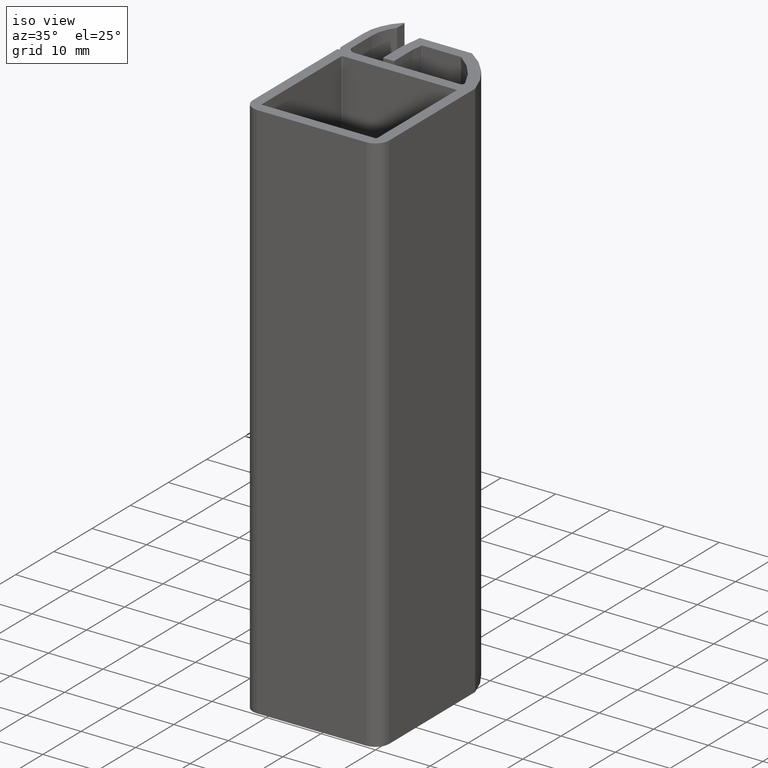
[diagram: clean part render]
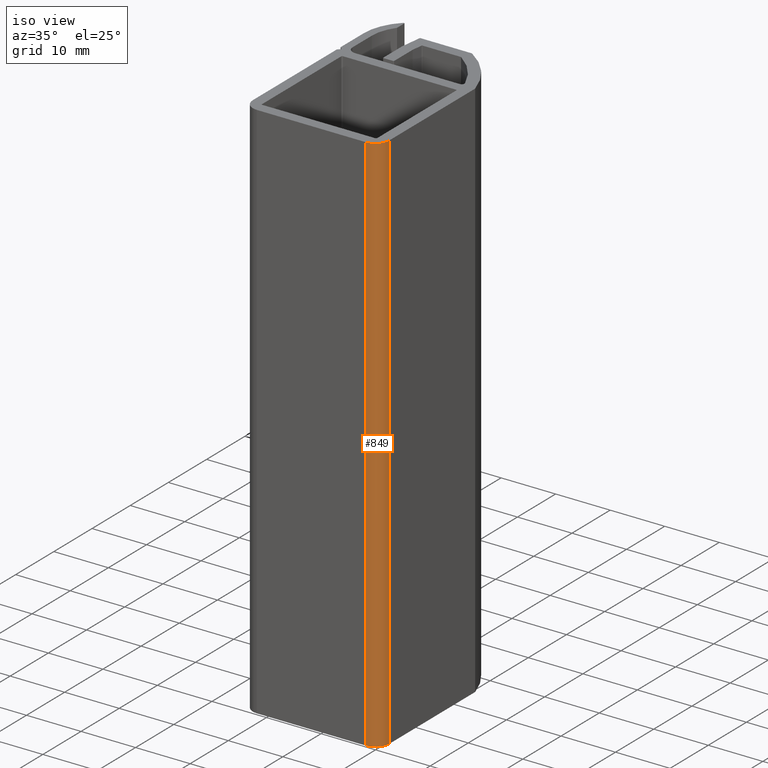
[diagram: same view with one face highlighted and labeled with its STEP entity id]
A machine part, iso view. The second image highlights one B-rep face of the part: STEP entity #849.
In plain terms, the highlighted cylindrical surface (edge-blend (fillet) strip) has radius 2.5 mm, axis along (0, 0, 1).
Its self-contained STEP definition (entity closure, byte-faithful):
#66=FACE_OUTER_BOUND('',#111,.T.);
#111=EDGE_LOOP('',(#692,#693,#694,#695));
#147=CIRCLE('',#913,2.49999999999904);
#164=CIRCLE('',#948,2.49999999999904);
#230=LINE('',#1418,#314);
#231=LINE('',#1422,#315);
#314=VECTOR('',#1153,10.);
#315=VECTOR('',#1158,10.);
#374=VERTEX_POINT('',#1316);
#375=VERTEX_POINT('',#1318);
#407=VERTEX_POINT('',#1416);
#408=VERTEX_POINT('',#1420);
#466=EDGE_CURVE('',#374,#375,#147,.T.);
#516=EDGE_CURVE('',#374,#407,#230,.T.);
#517=EDGE_CURVE('',#408,#407,#164,.T.);
#518=EDGE_CURVE('',#375,#408,#231,.T.);
#692=ORIENTED_EDGE('',*,*,#516,.T.);
#693=ORIENTED_EDGE('',*,*,#517,.F.);
#694=ORIENTED_EDGE('',*,*,#518,.F.);
#695=ORIENTED_EDGE('',*,*,#466,.F.);
#815=CYLINDRICAL_SURFACE('',#947,2.49999999999904);
#849=ADVANCED_FACE('',(#66),#815,.T.);
#913=AXIS2_PLACEMENT_3D('',#1319,#1052,#1053);
#947=AXIS2_PLACEMENT_3D('',#1419,#1154,#1155);
#948=AXIS2_PLACEMENT_3D('',#1421,#1156,#1157);
#1052=DIRECTION('center_axis',(0.,0.,-1.));
#1053=DIRECTION('ref_axis',(-3.10862446895044E-15,-1.,0.));
#1153=DIRECTION('',(0.,0.,1.));
#1154=DIRECTION('center_axis',(0.,0.,1.));
#1155=DIRECTION('ref_axis',(-3.10862446895044E-15,-1.,0.));
#1156=DIRECTION('center_axis',(0.,0.,1.));
#1157=DIRECTION('ref_axis',(-3.10862446895044E-15,-1.,0.));
#1158=DIRECTION('',(0.,0.,1.));
#1316=CARTESIAN_POINT('',(12.4999999999992,-10.0000000000013,-50.));
#1318=CARTESIAN_POINT('',(9.9999999999992,-12.5000000000013,-50.));
#1319=CARTESIAN_POINT('Origin',(9.99999999999921,-10.0000000000013,-50.));
#1416=CARTESIAN_POINT('',(12.4999999999992,-10.0000000000013,50.));
#1418=CARTESIAN_POINT('',(12.4999999999992,-10.0000000000013,0.));
#1419=CARTESIAN_POINT('Origin',(9.99999999999921,-10.0000000000013,0.));
#1420=CARTESIAN_POINT('',(9.9999999999992,-12.5000000000013,50.));
#1421=CARTESIAN_POINT('Origin',(9.99999999999921,-10.0000000000013,50.));
#1422=CARTESIAN_POINT('',(9.9999999999992,-12.5000000000013,0.));